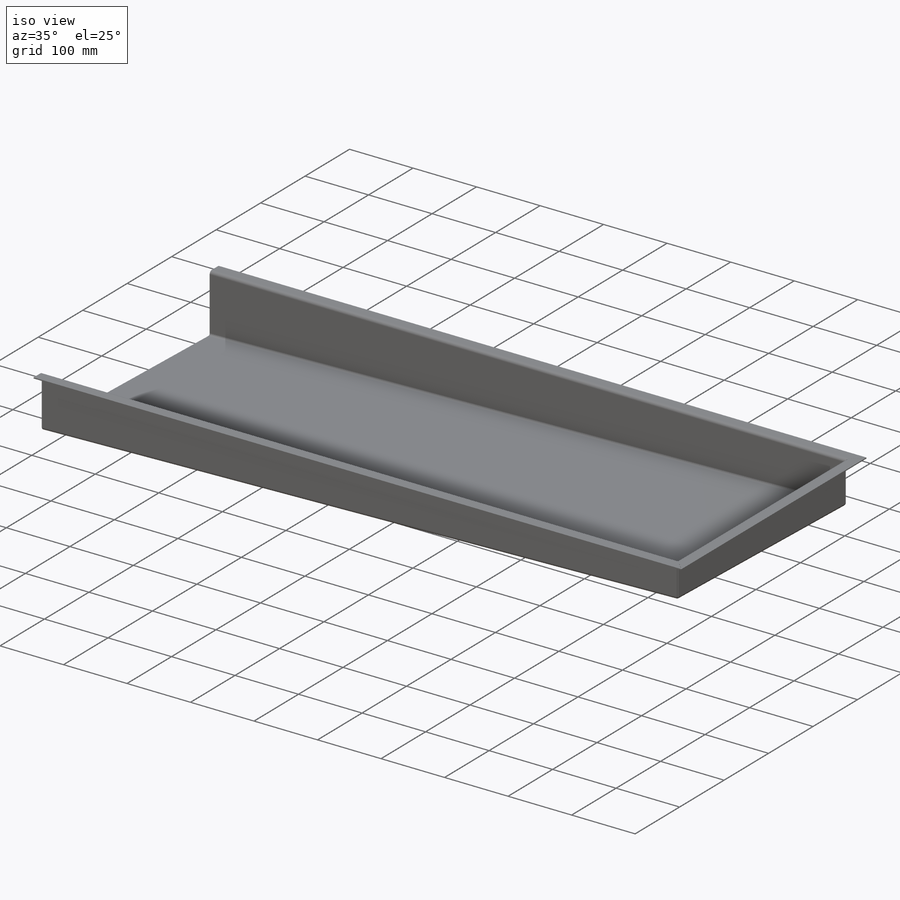
[diagram: iso view]
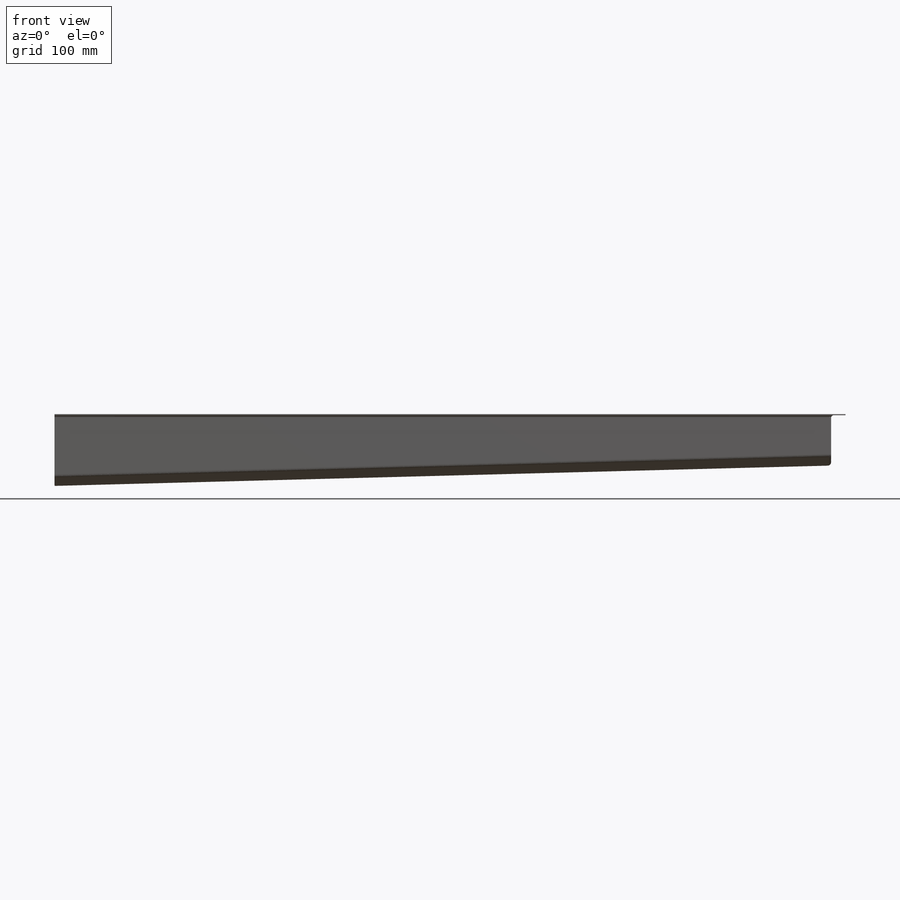
[diagram: front view]
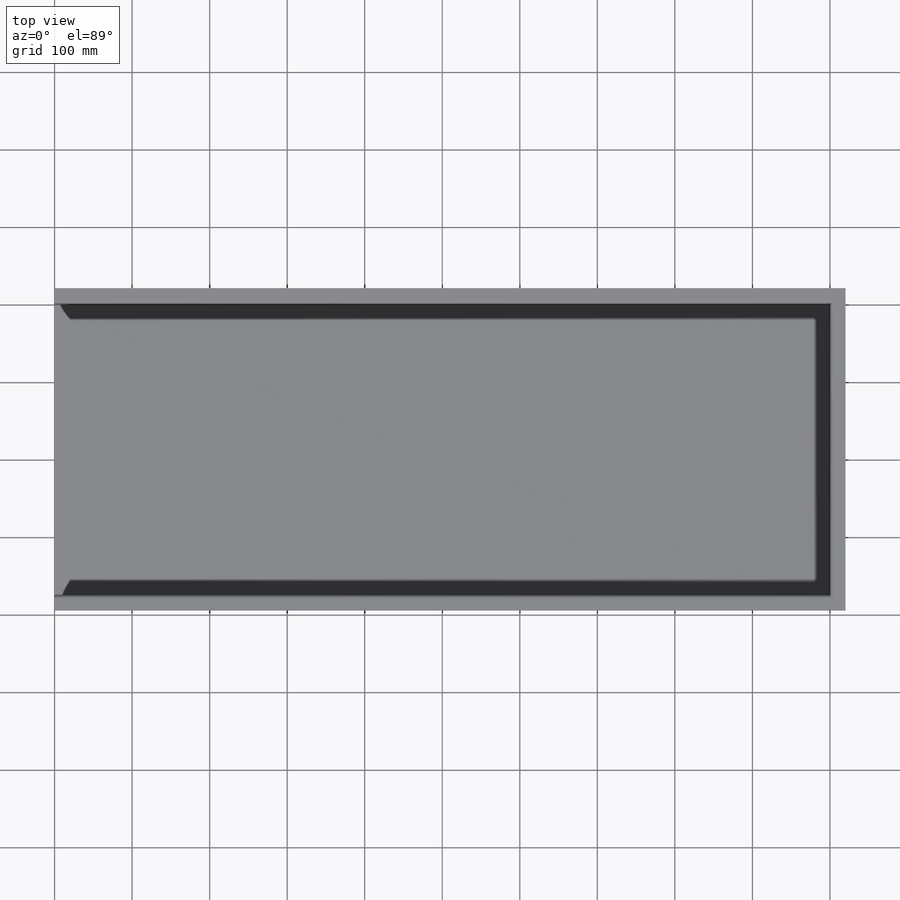
[diagram: top view]
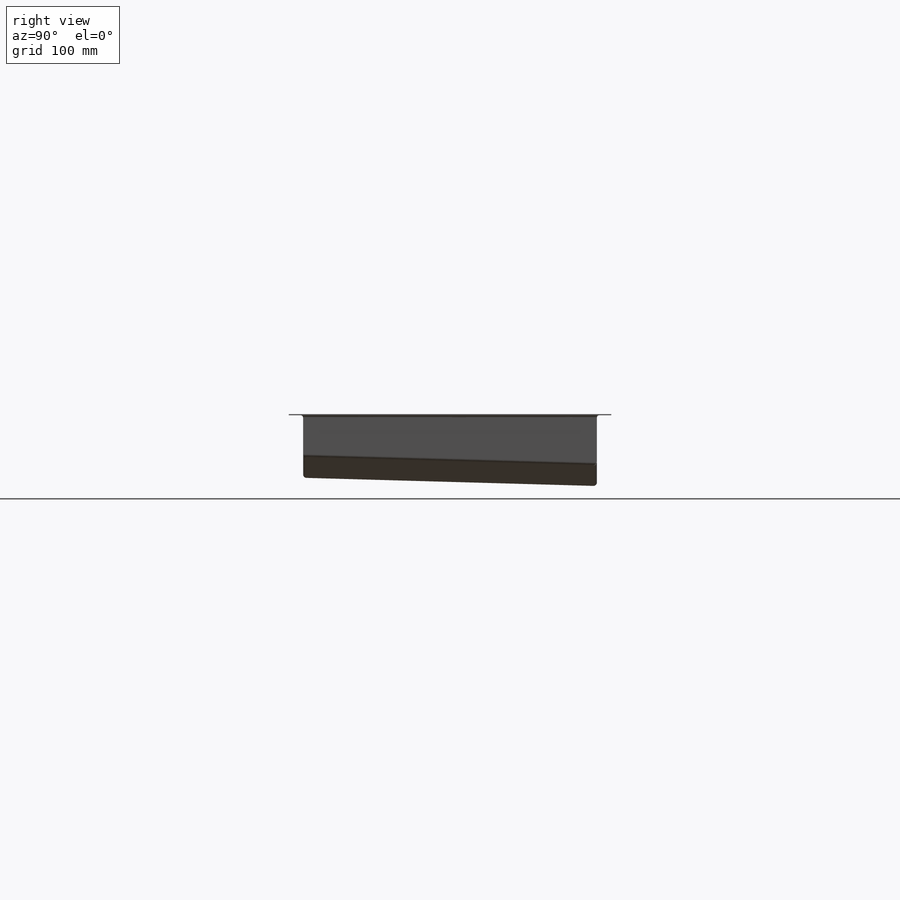
[diagram: right view]
SOLIDWORKS PART (.sldprt)
format: sldprt  version: not decoded by parser v0  size: 393,728 bytes
history: native  units: mm
features: sketch x7, plane x4, extrude x2, material x1, sheet_metal_op x1 + 6 further entries (+8 scaffold rows collapsed; 1 parser-record rows omitted)
feature tree (30):
  scaffold x8  (default folders/planes/origin — collapsed)
  material  "1.0037 (S235JR)"
  plane  "Ebene vorne"
  plane  "Ebene oben"
  plane  "Ebene rechts"
  sketch  "Vektor"  dims[c1.D1=~76.07306mm c2.D1=~6.350638deg c3.D1=~27.925268mm c3.D2=376.0mm]
  sketch  "Wanne"  dims[D1=1000.0mm D2=65.0mm D3=~1544.616388mm]
  extrude  "Klotz"  [1 undecoded]
  plane  "Ebene 65"
  sketch  "Offset"  dims[D2=416.0mm D1=20.0mm]
  extrude  "Rand"  Depth=50mm
  sketch  "Skizze4"
  sketch  "Skizze5"
  sheet_metal_op  "Blech1"  Biegung-Winkel2=0 Biegung-Winkel3=0 Biegung-Winkel4=0 Biegung-Winkel5=0 Biegung-Winkel6=0
  "Abwicklung1"
  sketch  "Biegung-Linien1"
  sketch  "Rahmen1"
  "Abwickeln-<Biegung-Winkel2>1"
  "Abwickeln-<Biegung-Winkel3>1"
  "Abwickeln-<Biegung-Winkel4>1"
  "Abwickeln-<Biegung-Winkel5>1"
  "Abwickeln-<Biegung-Winkel6>1"
  parser-record x1  (decoder bookkeeping rows leaked as tree rows — omitted from the tree; the rows remain in map.json)
decode coverage: 5 of 10 modeling features carry decoded parameters; 6 rows unclassified (native names shown)
note: ~ marks probable driven/reference dimensions
note: 1 parameter value undecoded
note: suppression state not decoded; provenance and decode notes live in map.json
